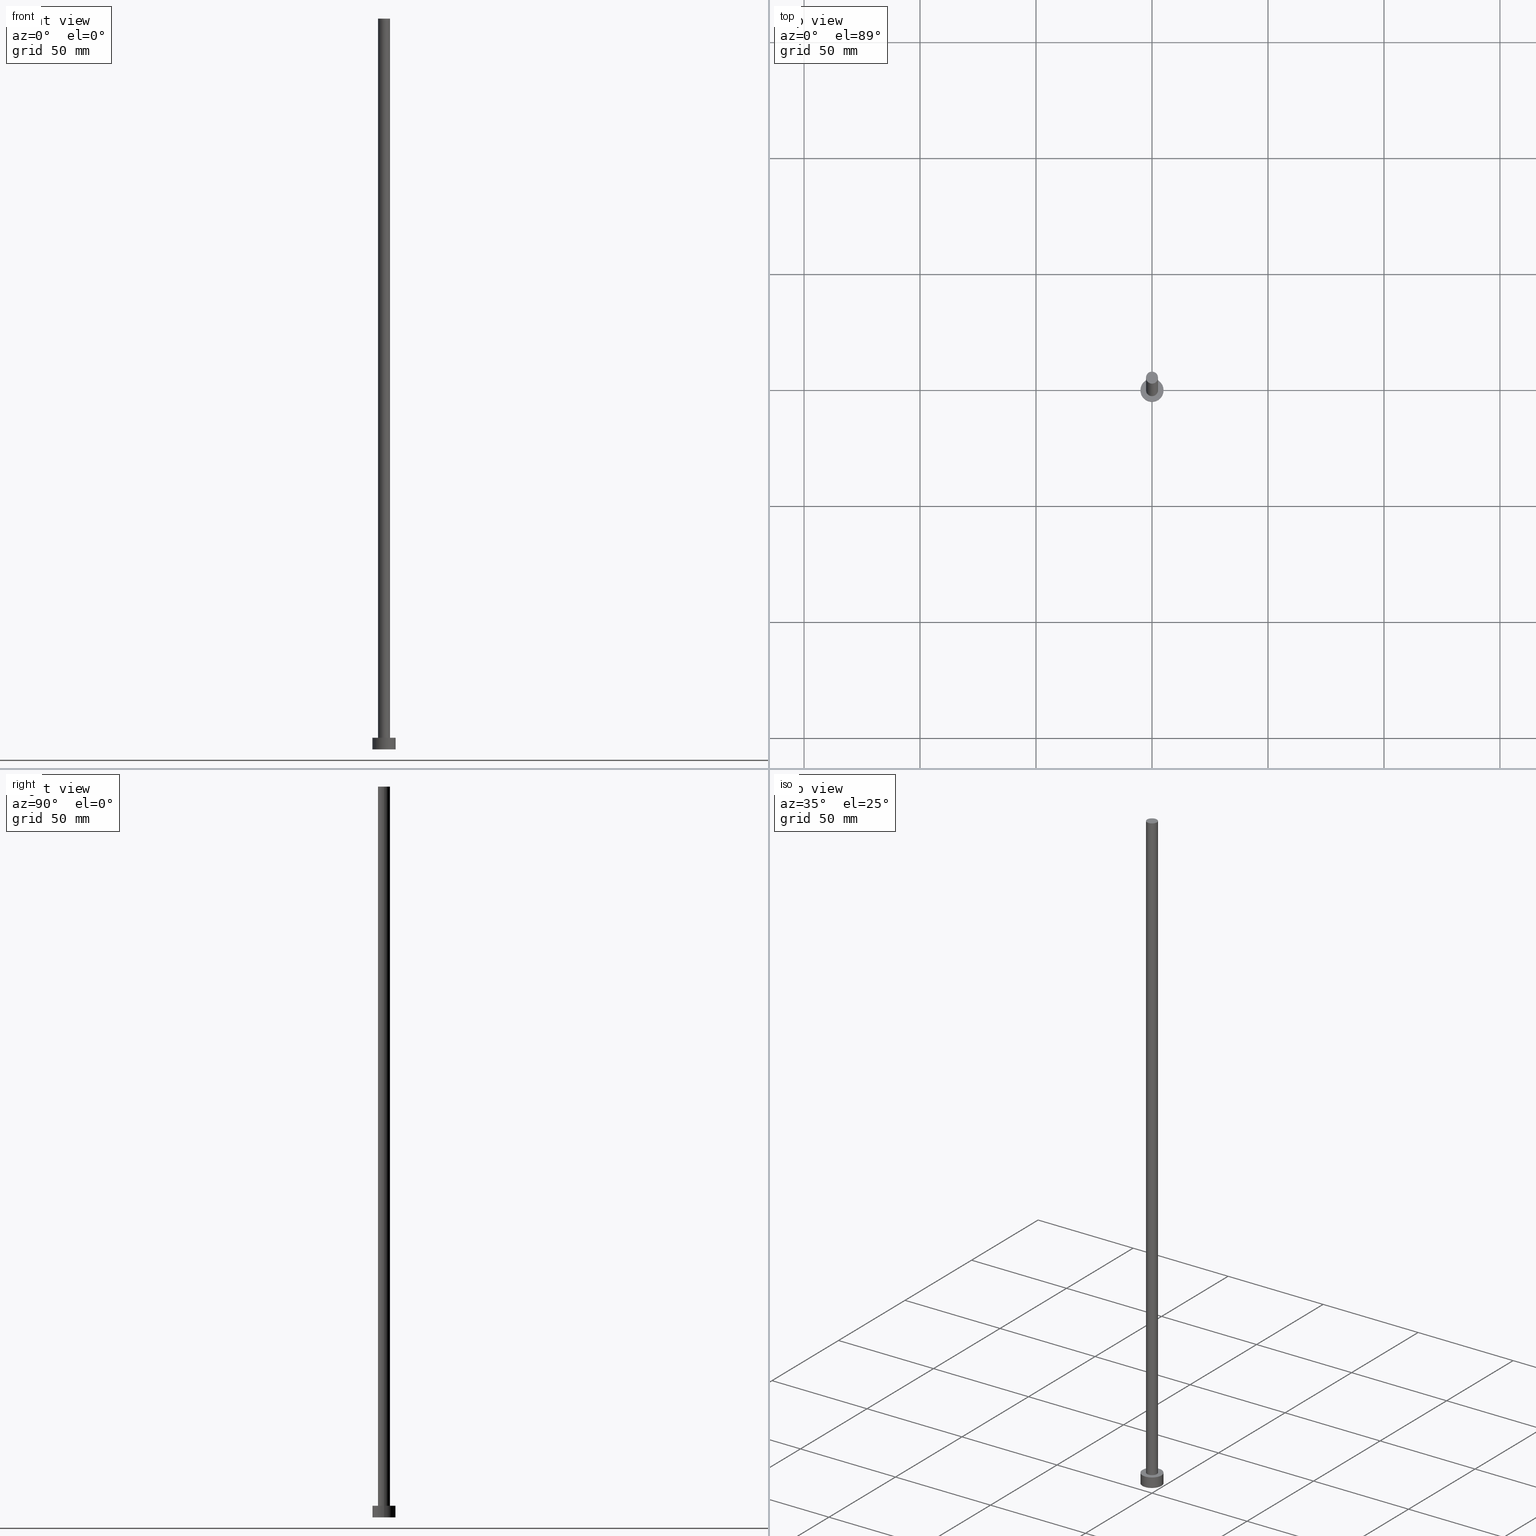
[diagram: canonical four-view strip — front | top / right | iso, engineering-drawing reading convention]
A machine part, canonical four-view strip (front | top / right | iso — engineering-drawing reading convention). The complete STEP part file that produces these views, byte-faithful:
ISO-10303-21;
HEADER;
FILE_DESCRIPTION (( 'STEP AP203' ),
    '1' );
FILE_NAME ('aea6.STEP',
    '2023-02-13T16:03:41',
    ( '' ),
    ( '' ),
    'SwSTEP 2.0',
    'SolidWorks 2019',
    '' );
FILE_SCHEMA (( 'CONFIG_CONTROL_DESIGN' ));
ENDSEC;

DATA;
#1 = ORIENTED_EDGE ( 'NONE', *, *, #106, .T. ) ;
#2 = DIRECTION ( 'NONE',  ( -0.000000000000000000, -0.000000000000000000, -1.000000000000000000 ) ) ;
#3 = LINE ( 'NONE', #205, #9 ) ;
#4 = DIRECTION ( 'NONE',  ( 1.000000000000000000, 0.000000000000000000, -0.000000000000000000 ) ) ;
#5 = EDGE_CURVE ( 'NONE', #247, #77, #115, .T. ) ;
#6 = LOCAL_TIME ( 17, 3, 41.00000000000000000, #132 ) ;
#7 = DIRECTION ( 'NONE',  ( 0.000000000000000000, 0.000000000000000000, 1.000000000000000000 ) ) ;
#8 = APPROVAL_DATE_TIME ( #138, #18 ) ;
#9 = VECTOR ( 'NONE', #23, 1000.000000000000000 ) ;
#10 = ORIENTED_EDGE ( 'NONE', *, *, #120, .T. ) ;
#11 = ORIENTED_EDGE ( 'NONE', *, *, #123, .T. ) ;
#12 = DATE_AND_TIME ( #92, #90 ) ;
#13 = VERTEX_POINT ( 'NONE', #238 ) ;
#14 = AXIS2_PLACEMENT_3D ( 'NONE', #117, #235, #38 ) ;
#15 = ORIENTED_EDGE ( 'NONE', *, *, #172, .T. ) ;
#16 = CARTESIAN_POINT ( 'NONE',  ( -2.600000000000000089, 0.000000000000000000, 315.0000000000000000 ) ) ;
#17 = DIRECTION ( 'NONE',  ( 1.000000000000000000, 0.000000000000000000, -0.000000000000000000 ) ) ;
#18 = APPROVAL ( #50, 'NEUR�EN�' ) ;
#19 = ORIENTED_EDGE ( 'NONE', *, *, #248, .F. ) ;
#20 = CC_DESIGN_PERSON_AND_ORGANIZATION_ASSIGNMENT ( #21, #67, ( #199 ) ) ;
#21 = PERSON_AND_ORGANIZATION ( #193, #186 ) ;
#22 = CC_DESIGN_APPROVAL ( #18, ( #127 ) ) ;
#23 = DIRECTION ( 'NONE',  ( -0.000000000000000000, -0.000000000000000000, -1.000000000000000000 ) ) ;
#24 = CARTESIAN_POINT ( 'NONE',  ( 0.000000000000000000, 0.000000000000000000, 315.0000000000000000 ) ) ;
#25 = PERSON_AND_ORGANIZATION ( #193, #186 ) ;
#26 = PERSON_AND_ORGANIZATION_ROLE ( 'creator' ) ;
#27 = AXIS2_PLACEMENT_3D ( 'NONE', #249, #162, #230 ) ;
#28 = AXIS2_PLACEMENT_3D ( 'NONE', #215, #97, #119 ) ;
#29 = COORDINATED_UNIVERSAL_TIME_OFFSET ( 1, 0, .AHEAD. ) ;
#30 = ORIENTED_EDGE ( 'NONE', *, *, #5, .F. ) ;
#31 = ORIENTED_EDGE ( 'NONE', *, *, #113, .T. ) ;
#32 = VERTEX_POINT ( 'NONE', #88 ) ;
#33 = AXIS2_PLACEMENT_3D ( 'NONE', #239, #7, #167 ) ;
#34 = CYLINDRICAL_SURFACE ( 'NONE', #14, 5.000000000000000000 ) ;
#35 = EDGE_CURVE ( 'NONE', #32, #45, #93, .T. ) ;
#36 = CARTESIAN_POINT ( 'NONE',  ( 0.000000000000000000, 0.000000000000000000, 5.000000000000000000 ) ) ;
#37 = ADVANCED_FACE ( 'NONE', ( #91 ), #60, .T. ) ;
#38 = DIRECTION ( 'NONE',  ( -1.000000000000000000, 0.000000000000000000, 0.000000000000000000 ) ) ;
#39 = DIRECTION ( 'NONE',  ( 0.000000000000000000, 0.000000000000000000, 1.000000000000000000 ) ) ;
#40 = AXIS2_PLACEMENT_3D ( 'NONE', #200, #198, #17 ) ;
#41 = AXIS2_PLACEMENT_3D ( 'NONE', #105, #188, #4 ) ;
#42 = DIRECTION ( 'NONE',  ( 0.000000000000000000, 0.000000000000000000, 1.000000000000000000 ) ) ;
#43 = APPLICATION_CONTEXT ( 'configuration controlled 3d designs of mechanical parts and assemblies' ) ;
#44 = PLANE ( 'NONE',  #41 ) ;
#45 = VERTEX_POINT ( 'NONE', #236 ) ;
#46 = DIRECTION ( 'NONE',  ( -0.000000000000000000, -0.000000000000000000, -1.000000000000000000 ) ) ;
#47 = APPROVAL_ROLE ( '' ) ;
#48 = CC_DESIGN_DATE_AND_TIME_ASSIGNMENT ( #110, #176, ( #204 ) ) ;
#49 = VERTEX_POINT ( 'NONE', #220 ) ;
#50 = APPROVAL_STATUS ( 'not_yet_approved' ) ;
#51 = APPROVAL_ROLE ( '' ) ;
#52 = ADVANCED_FACE ( 'NONE', ( #62 ), #147, .T. ) ;
#53 = ORIENTED_EDGE ( 'NONE', *, *, #59, .T. ) ;
#54 = ORIENTED_EDGE ( 'NONE', *, *, #113, .F. ) ;
#55 = FACE_OUTER_BOUND ( 'NONE', #131, .T. ) ;
#56 = AXIS2_PLACEMENT_3D ( 'NONE', #36, #99, #122 ) ;
#57 = DIRECTION ( 'NONE',  ( -0.000000000000000000, -0.000000000000000000, -1.000000000000000000 ) ) ;
#58 = DIRECTION ( 'NONE',  ( 1.000000000000000000, 0.000000000000000000, 0.000000000000000000 ) ) ;
#59 = EDGE_CURVE ( 'NONE', #45, #32, #142, .T. ) ;
#60 = CYLINDRICAL_SURFACE ( 'NONE', #68, 2.600000000000000089 ) ;
#61 =( NAMED_UNIT ( * ) PLANE_ANGLE_UNIT ( ) SI_UNIT ( $, .RADIAN. ) );
#62 = FACE_OUTER_BOUND ( 'NONE', #100, .T. ) ;
#63 = CARTESIAN_POINT ( 'NONE',  ( 0.000000000000000000, 0.000000000000000000, 315.0000000000000000 ) ) ;
#64 = AXIS2_PLACEMENT_3D ( 'NONE', #168, #234, #58 ) ;
#65 = FACE_BOUND ( 'NONE', #231, .T. ) ;
#66 = EDGE_CURVE ( 'NONE', #126, #217, #3, .T. ) ;
#67 = PERSON_AND_ORGANIZATION_ROLE ( 'design_owner' ) ;
#68 = AXIS2_PLACEMENT_3D ( 'NONE', #63, #46, #165 ) ;
#69 = APPROVAL_PERSON_ORGANIZATION ( #194, #18, #153 ) ;
#70 = PERSON_AND_ORGANIZATION ( #193, #186 ) ;
#71 = COORDINATED_UNIVERSAL_TIME_OFFSET ( 1, 0, .AHEAD. ) ;
#72 = ADVANCED_FACE ( 'NONE', ( #65, #89 ), #44, .T. ) ;
#73 = PERSON_AND_ORGANIZATION_ROLE ( 'classification_officer' ) ;
#74 = CC_DESIGN_APPROVAL ( #226, ( #233 ) ) ;
#75 = PLANE ( 'NONE',  #40 ) ;
#76 = EDGE_LOOP ( 'NONE', ( #1, #149 ) ) ;
#77 = VERTEX_POINT ( 'NONE', #169 ) ;
#78 = CC_DESIGN_PERSON_AND_ORGANIZATION_ASSIGNMENT ( #25, #242, ( #233 ) ) ;
#79 = AXIS2_PLACEMENT_3D ( 'NONE', #240, #170, #174 ) ;
#80 = CC_DESIGN_APPROVAL ( #81, ( #204 ) ) ;
#81 = APPROVAL ( #158, 'NEUR�EN�' ) ;
#82 = AXIS2_PLACEMENT_3D ( 'NONE', #201, #57, #163 ) ;
#83 = DIRECTION ( 'NONE',  ( 1.000000000000000000, 0.000000000000000000, 0.000000000000000000 ) ) ;
#84 = DIRECTION ( 'NONE',  ( 0.000000000000000000, 0.000000000000000000, 1.000000000000000000 ) ) ;
#85 = LINE ( 'NONE', #206, #145 ) ;
#86 = EDGE_LOOP ( 'NONE', ( #179, #15, #10, #161 ) ) ;
#87 =( NAMED_UNIT ( * ) SI_UNIT ( $, .STERADIAN. ) SOLID_ANGLE_UNIT ( ) );
#88 = CARTESIAN_POINT ( 'NONE',  ( 5.000000000000000000, 6.123233995736766282E-16, 0.000000000000000000 ) ) ;
#89 = FACE_OUTER_BOUND ( 'NONE', #76, .T. ) ;
#90 = LOCAL_TIME ( 17, 3, 41.00000000000000000, #29 ) ;
#91 = FACE_OUTER_BOUND ( 'NONE', #86, .T. ) ;
#92 = CALENDAR_DATE ( 2023, 13, 2 ) ;
#93 = CIRCLE ( 'NONE', #33, 5.000000000000000000 ) ;
#94 = LOCAL_TIME ( 17, 3, 41.00000000000000000, #71 ) ;
#95 = ORIENTED_EDGE ( 'NONE', *, *, #106, .F. ) ;
#96 = CALENDAR_DATE ( 2023, 13, 2 ) ;
#97 = DIRECTION ( 'NONE',  ( 0.000000000000000000, 0.000000000000000000, 1.000000000000000000 ) ) ;
#98 = ORIENTED_EDGE ( 'NONE', *, *, #219, .T. ) ;
#99 = DIRECTION ( 'NONE',  ( 0.000000000000000000, 0.000000000000000000, 1.000000000000000000 ) ) ;
#100 = EDGE_LOOP ( 'NONE', ( #31, #102 ) ) ;
#101 = AXIS2_PLACEMENT_3D ( 'NONE', #222, #42, #108 ) ;
#102 = ORIENTED_EDGE ( 'NONE', *, *, #252, .T. ) ;
#103 = LINE ( 'NONE', #202, #159 ) ;
#104 = DIRECTION ( 'NONE',  ( 1.000000000000000000, 0.000000000000000000, 0.000000000000000000 ) ) ;
#105 = CARTESIAN_POINT ( 'NONE',  ( 0.000000000000000000, 0.000000000000000000, 5.000000000000000000 ) ) ;
#106 = EDGE_CURVE ( 'NONE', #77, #247, #192, .T. ) ;
#107 = SECURITY_CLASSIFICATION_LEVEL ( 'unclassified' ) ;
#108 = DIRECTION ( 'NONE',  ( 1.000000000000000000, 0.000000000000000000, -0.000000000000000000 ) ) ;
#109 = PERSON_AND_ORGANIZATION ( #193, #186 ) ;
#110 = DATE_AND_TIME ( #96, #94 ) ;
#111 = COORDINATED_UNIVERSAL_TIME_OFFSET ( 1, 0, .AHEAD. ) ;
#112 = AXIS2_PLACEMENT_3D ( 'NONE', #133, #209, #144 ) ;
#113 = EDGE_CURVE ( 'NONE', #126, #13, #221, .T. ) ;
#114 = CYLINDRICAL_SURFACE ( 'NONE', #27, 5.000000000000000000 ) ;
#115 = CIRCLE ( 'NONE', #254, 5.000000000000000000 ) ;
#116 =( GEOMETRIC_REPRESENTATION_CONTEXT ( 3 ) GLOBAL_UNCERTAINTY_ASSIGNED_CONTEXT ( ( #157 ) ) GLOBAL_UNIT_ASSIGNED_CONTEXT ( ( #184, #61, #87 ) ) REPRESENTATION_CONTEXT ( 'NONE', 'WORKASPACE' ) );
#117 = CARTESIAN_POINT ( 'NONE',  ( 0.000000000000000000, 0.000000000000000000, 5.000000000000000000 ) ) ;
#118 = SHAPE_DEFINITION_REPRESENTATION ( #183, #156 ) ;
#119 = DIRECTION ( 'NONE',  ( 1.000000000000000000, 0.000000000000000000, 0.000000000000000000 ) ) ;
#120 = EDGE_CURVE ( 'NONE', #49, #217, #150, .T. ) ;
#121 = CC_DESIGN_SECURITY_CLASSIFICATION ( #204, ( #233 ) ) ;
#122 = DIRECTION ( 'NONE',  ( 1.000000000000000000, 0.000000000000000000, 0.000000000000000000 ) ) ;
#123 = EDGE_CURVE ( 'NONE', #217, #49, #182, .T. ) ;
#124 = ORIENTED_EDGE ( 'NONE', *, *, #66, .T. ) ;
#125 = MECHANICAL_CONTEXT ( 'NONE', #137, 'mechanical' ) ;
#126 = VERTEX_POINT ( 'NONE', #16 ) ;
#127 = PRODUCT_DEFINITION ( 'NEZN�M�', '', #233, #160 ) ;
#128 = APPROVAL_PERSON_ORGANIZATION ( #223, #226, #51 ) ;
#129 = CARTESIAN_POINT ( 'NONE',  ( 5.000000000000000000, 6.123233995736766282E-16, 5.000000000000000000 ) ) ;
#130 = DIRECTION ( 'NONE',  ( 1.000000000000000000, 0.000000000000000000, 0.000000000000000000 ) ) ;
#131 = EDGE_LOOP ( 'NONE', ( #19, #95, #98, #53 ) ) ;
#132 = COORDINATED_UNIVERSAL_TIME_OFFSET ( 1, 0, .AHEAD. ) ;
#133 = CARTESIAN_POINT ( 'NONE',  ( 0.000000000000000000, 0.000000000000000000, 315.0000000000000000 ) ) ;
#134 = APPROVAL_PERSON_ORGANIZATION ( #190, #81, #47 ) ;
#135 = ADVANCED_FACE ( 'NONE', ( #251 ), #75, .F. ) ;
#136 = ORIENTED_EDGE ( 'NONE', *, *, #172, .F. ) ;
#137 = APPLICATION_CONTEXT ( 'configuration controlled 3d designs of mechanical parts and assemblies' ) ;
#138 = DATE_AND_TIME ( #173, #143 ) ;
#139 = FACE_OUTER_BOUND ( 'NONE', #211, .T. ) ;
#140 = CC_DESIGN_DATE_AND_TIME_ASSIGNMENT ( #244, #245, ( #127 ) ) ;
#141 = EDGE_LOOP ( 'NONE', ( #136, #54, #124, #11 ) ) ;
#142 = CIRCLE ( 'NONE', #232, 5.000000000000000000 ) ;
#143 = LOCAL_TIME ( 17, 3, 41.00000000000000000, #111 ) ;
#144 = DIRECTION ( 'NONE',  ( 1.000000000000000000, 0.000000000000000000, 0.000000000000000000 ) ) ;
#145 = VECTOR ( 'NONE', #2, 1000.000000000000000 ) ;
#146 = ADVANCED_FACE ( 'NONE', ( #214 ), #178, .T. ) ;
#147 = PLANE ( 'NONE',  #101 ) ;
#148 = CC_DESIGN_PERSON_AND_ORGANIZATION_ASSIGNMENT ( #208, #210, ( #127 ) ) ;
#149 = ORIENTED_EDGE ( 'NONE', *, *, #5, .T. ) ;
#150 = CIRCLE ( 'NONE', #28, 2.600000000000000089 ) ;
#151 = ORIENTED_EDGE ( 'NONE', *, *, #219, .F. ) ;
#152 = CARTESIAN_POINT ( 'NONE',  ( -2.600000000000000089, 0.000000000000000000, 5.000000000000000000 ) ) ;
#153 = APPROVAL_ROLE ( '' ) ;
#154 = APPROVAL_STATUS ( 'not_yet_approved' ) ;
#155 = CALENDAR_DATE ( 2023, 13, 2 ) ;
#156 = ADVANCED_BREP_SHAPE_REPRESENTATION ( 'aea6', ( #213, #64 ), #116 ) ;
#157 = UNCERTAINTY_MEASURE_WITH_UNIT (LENGTH_MEASURE( 1.000000000000000082E-05 ), #184, 'distance_accuracy_value', 'NONE');
#158 = APPROVAL_STATUS ( 'not_yet_approved' ) ;
#159 = VECTOR ( 'NONE', #237, 1000.000000000000000 ) ;
#160 = DESIGN_CONTEXT ( 'detailed design', #43, 'design' ) ;
#161 = ORIENTED_EDGE ( 'NONE', *, *, #66, .F. ) ;
#162 = DIRECTION ( 'NONE',  ( -0.000000000000000000, -0.000000000000000000, -1.000000000000000000 ) ) ;
#163 = DIRECTION ( 'NONE',  ( -1.000000000000000000, 0.000000000000000000, 0.000000000000000000 ) ) ;
#164 = ORIENTED_EDGE ( 'NONE', *, *, #123, .F. ) ;
#165 = DIRECTION ( 'NONE',  ( -1.000000000000000000, 0.000000000000000000, 0.000000000000000000 ) ) ;
#166 = DIRECTION ( 'NONE',  ( 0.000000000000000000, 0.000000000000000000, 1.000000000000000000 ) ) ;
#167 = DIRECTION ( 'NONE',  ( 1.000000000000000000, 0.000000000000000000, 0.000000000000000000 ) ) ;
#168 = CARTESIAN_POINT ( 'NONE',  ( 0.000000000000000000, 0.000000000000000000, 0.000000000000000000 ) ) ;
#169 = CARTESIAN_POINT ( 'NONE',  ( -5.000000000000000000, 0.000000000000000000, 5.000000000000000000 ) ) ;
#170 = DIRECTION ( 'NONE',  ( 0.000000000000000000, 0.000000000000000000, 1.000000000000000000 ) ) ;
#171 = APPROVAL_DATE_TIME ( #12, #226 ) ;
#172 = EDGE_CURVE ( 'NONE', #13, #49, #177, .T. ) ;
#173 = CALENDAR_DATE ( 2023, 13, 2 ) ;
#174 = DIRECTION ( 'NONE',  ( 1.000000000000000000, 0.000000000000000000, 0.000000000000000000 ) ) ;
#175 = ORIENTED_EDGE ( 'NONE', *, *, #248, .T. ) ;
#176 = DATE_TIME_ROLE ( 'classification_date' ) ;
#177 = LINE ( 'NONE', #246, #227 ) ;
#178 = CYLINDRICAL_SURFACE ( 'NONE', #82, 2.600000000000000089 ) ;
#179 = ORIENTED_EDGE ( 'NONE', *, *, #252, .F. ) ;
#180 = ADVANCED_FACE ( 'NONE', ( #139 ), #114, .T. ) ;
#181 = AXIS2_PLACEMENT_3D ( 'NONE', #24, #166, #83 ) ;
#182 = CIRCLE ( 'NONE', #56, 2.600000000000000089 ) ;
#183 = PRODUCT_DEFINITION_SHAPE ( 'NONE', 'NONE',  #127 ) ;
#184 =( LENGTH_UNIT ( ) NAMED_UNIT ( * ) SI_UNIT ( .MILLI., .METRE. ) );
#185 = ORIENTED_EDGE ( 'NONE', *, *, #35, .F. ) ;
#186 = ORGANIZATION ( 'NEUR�EN�', 'NEUR�EN�', '' ) ;
#187 = EDGE_LOOP ( 'NONE', ( #250, #185 ) ) ;
#188 = DIRECTION ( 'NONE',  ( 0.000000000000000000, 0.000000000000000000, 1.000000000000000000 ) ) ;
#189 = CC_DESIGN_PERSON_AND_ORGANIZATION_ASSIGNMENT ( #70, #73, ( #204 ) ) ;
#190 = PERSON_AND_ORGANIZATION ( #193, #186 ) ;
#191 = CIRCLE ( 'NONE', #181, 2.600000000000000089 ) ;
#192 = CIRCLE ( 'NONE', #79, 5.000000000000000000 ) ;
#193 = PERSON ( 'NEUR�EN�', 'NEUR�EN�', 'NEUR�EN�', ('NEUR�EN�'), ('NEUR�EN�'), ('NEUR�EN�') ) ;
#194 = PERSON_AND_ORGANIZATION ( #193, #186 ) ;
#195 = ORIENTED_EDGE ( 'NONE', *, *, #120, .F. ) ;
#196 = ADVANCED_FACE ( 'NONE', ( #55 ), #34, .T. ) ;
#197 = APPROVAL_DATE_TIME ( #228, #81 ) ;
#198 = DIRECTION ( 'NONE',  ( 0.000000000000000000, 0.000000000000000000, 1.000000000000000000 ) ) ;
#199 = PRODUCT ( 'aea6', 'aea6', '', ( #125 ) ) ;
#200 = CARTESIAN_POINT ( 'NONE',  ( 0.000000000000000000, 0.000000000000000000, 0.000000000000000000 ) ) ;
#201 = CARTESIAN_POINT ( 'NONE',  ( 0.000000000000000000, 0.000000000000000000, 315.0000000000000000 ) ) ;
#202 = CARTESIAN_POINT ( 'NONE',  ( -5.000000000000000000, 0.000000000000000000, 5.000000000000000000 ) ) ;
#203 = LOCAL_TIME ( 17, 3, 41.00000000000000000, #207 ) ;
#204 = SECURITY_CLASSIFICATION ( '', '', #107 ) ;
#205 = CARTESIAN_POINT ( 'NONE',  ( -2.600000000000000089, 0.000000000000000000, 315.0000000000000000 ) ) ;
#206 = CARTESIAN_POINT ( 'NONE',  ( 5.000000000000000000, 6.123233995736766282E-16, 5.000000000000000000 ) ) ;
#207 = COORDINATED_UNIVERSAL_TIME_OFFSET ( 1, 0, .AHEAD. ) ;
#208 = PERSON_AND_ORGANIZATION ( #193, #186 ) ;
#209 = DIRECTION ( 'NONE',  ( 0.000000000000000000, 0.000000000000000000, 1.000000000000000000 ) ) ;
#210 = PERSON_AND_ORGANIZATION_ROLE ( 'creator' ) ;
#211 = EDGE_LOOP ( 'NONE', ( #30, #175, #212, #151 ) ) ;
#212 = ORIENTED_EDGE ( 'NONE', *, *, #35, .T. ) ;
#213 = MANIFOLD_SOLID_BREP ( 'P�idat vysunut�m3', #243 ) ;
#214 = FACE_OUTER_BOUND ( 'NONE', #141, .T. ) ;
#215 = CARTESIAN_POINT ( 'NONE',  ( 0.000000000000000000, 0.000000000000000000, 5.000000000000000000 ) ) ;
#216 = APPLICATION_PROTOCOL_DEFINITION ( 'international standard', 'config_control_design', 1994, #137 ) ;
#217 = VERTEX_POINT ( 'NONE', #152 ) ;
#218 = CARTESIAN_POINT ( 'NONE',  ( 0.000000000000000000, 0.000000000000000000, 0.000000000000000000 ) ) ;
#219 = EDGE_CURVE ( 'NONE', #77, #45, #103, .T. ) ;
#220 = CARTESIAN_POINT ( 'NONE',  ( 2.600000000000000089, 3.184081677783118191E-16, 5.000000000000000000 ) ) ;
#221 = CIRCLE ( 'NONE', #112, 2.600000000000000089 ) ;
#222 = CARTESIAN_POINT ( 'NONE',  ( 0.000000000000000000, 0.000000000000000000, 315.0000000000000000 ) ) ;
#223 = PERSON_AND_ORGANIZATION ( #193, #186 ) ;
#224 = CC_DESIGN_PERSON_AND_ORGANIZATION_ASSIGNMENT ( #109, #26, ( #233 ) ) ;
#225 = CALENDAR_DATE ( 2023, 13, 2 ) ;
#226 = APPROVAL ( #154, 'NEUR�EN�' ) ;
#227 = VECTOR ( 'NONE', #229, 1000.000000000000000 ) ;
#228 = DATE_AND_TIME ( #155, #6 ) ;
#229 = DIRECTION ( 'NONE',  ( -0.000000000000000000, -0.000000000000000000, -1.000000000000000000 ) ) ;
#230 = DIRECTION ( 'NONE',  ( -1.000000000000000000, 0.000000000000000000, 0.000000000000000000 ) ) ;
#231 = EDGE_LOOP ( 'NONE', ( #164, #195 ) ) ;
#232 = AXIS2_PLACEMENT_3D ( 'NONE', #218, #39, #130 ) ;
#233 = PRODUCT_DEFINITION_FORMATION_WITH_SPECIFIED_SOURCE ( 'LIBOVOLN�', '', #199, .NOT_KNOWN. ) ;
#234 = DIRECTION ( 'NONE',  ( 0.000000000000000000, 0.000000000000000000, 1.000000000000000000 ) ) ;
#235 = DIRECTION ( 'NONE',  ( -0.000000000000000000, -0.000000000000000000, -1.000000000000000000 ) ) ;
#236 = CARTESIAN_POINT ( 'NONE',  ( -5.000000000000000000, 0.000000000000000000, 0.000000000000000000 ) ) ;
#237 = DIRECTION ( 'NONE',  ( -0.000000000000000000, -0.000000000000000000, -1.000000000000000000 ) ) ;
#238 = CARTESIAN_POINT ( 'NONE',  ( 2.600000000000000089, 3.184081677783118191E-16, 315.0000000000000000 ) ) ;
#239 = CARTESIAN_POINT ( 'NONE',  ( 0.000000000000000000, 0.000000000000000000, 0.000000000000000000 ) ) ;
#240 = CARTESIAN_POINT ( 'NONE',  ( 0.000000000000000000, 0.000000000000000000, 5.000000000000000000 ) ) ;
#241 = PRODUCT_RELATED_PRODUCT_CATEGORY ( 'detail', '', ( #199 ) ) ;
#242 = PERSON_AND_ORGANIZATION_ROLE ( 'design_supplier' ) ;
#243 = CLOSED_SHELL ( 'NONE', ( #37, #180, #196, #72, #135, #146, #52 ) ) ;
#244 = DATE_AND_TIME ( #225, #203 ) ;
#245 = DATE_TIME_ROLE ( 'creation_date' ) ;
#246 = CARTESIAN_POINT ( 'NONE',  ( 2.600000000000000089, 3.184081677783118191E-16, 315.0000000000000000 ) ) ;
#247 = VERTEX_POINT ( 'NONE', #129 ) ;
#248 = EDGE_CURVE ( 'NONE', #247, #32, #85, .T. ) ;
#249 = CARTESIAN_POINT ( 'NONE',  ( 0.000000000000000000, 0.000000000000000000, 5.000000000000000000 ) ) ;
#250 = ORIENTED_EDGE ( 'NONE', *, *, #59, .F. ) ;
#251 = FACE_OUTER_BOUND ( 'NONE', #187, .T. ) ;
#252 = EDGE_CURVE ( 'NONE', #13, #126, #191, .T. ) ;
#253 = APPLICATION_PROTOCOL_DEFINITION ( 'international standard', 'config_control_design', 1994, #43 ) ;
#254 = AXIS2_PLACEMENT_3D ( 'NONE', #255, #84, #104 ) ;
#255 = CARTESIAN_POINT ( 'NONE',  ( 0.000000000000000000, 0.000000000000000000, 5.000000000000000000 ) ) ;
ENDSEC;
END-ISO-10303-21;
